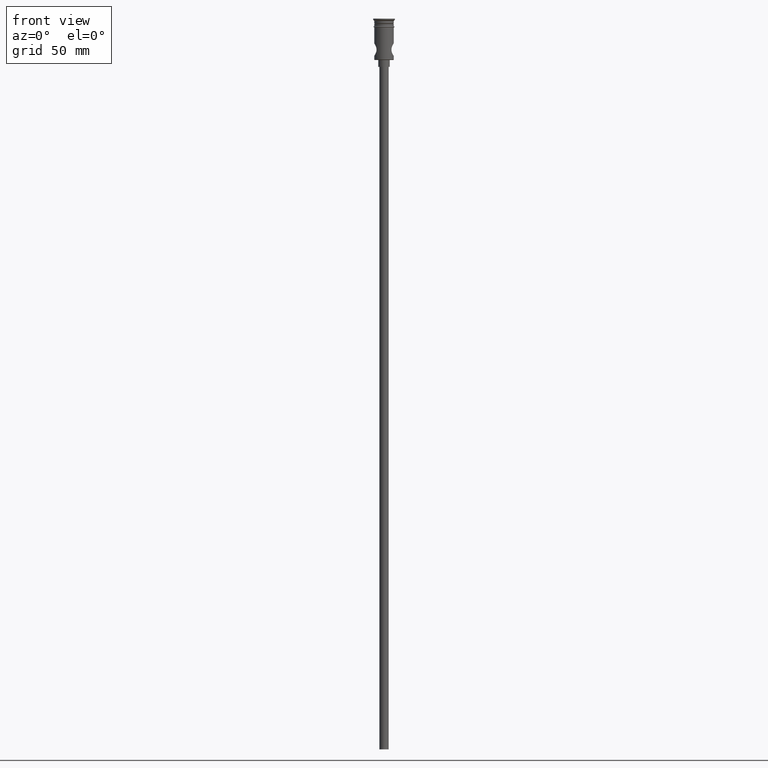
[diagram: clean part render]
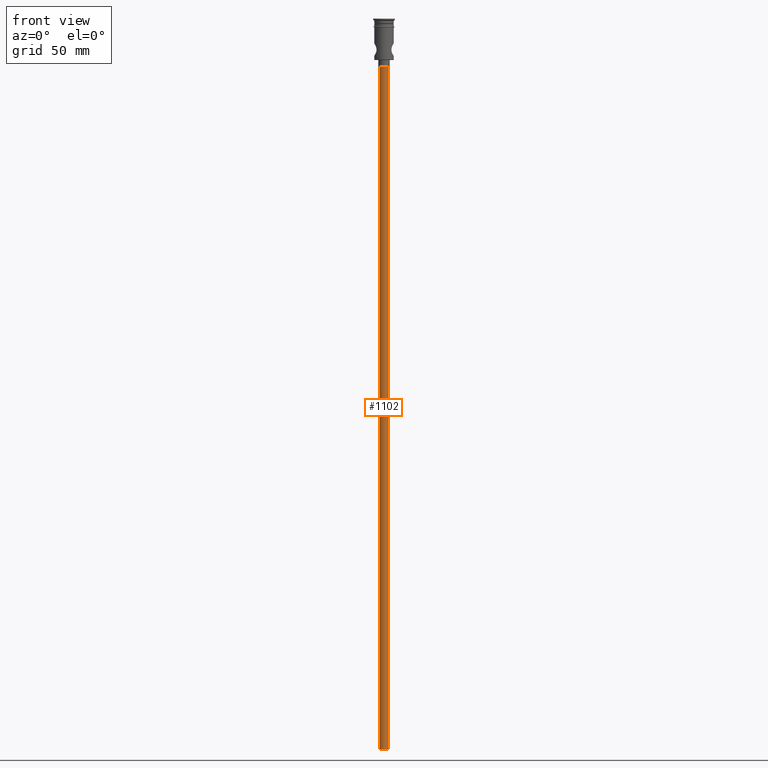
[diagram: same view with one face highlighted and labeled with its STEP entity id]
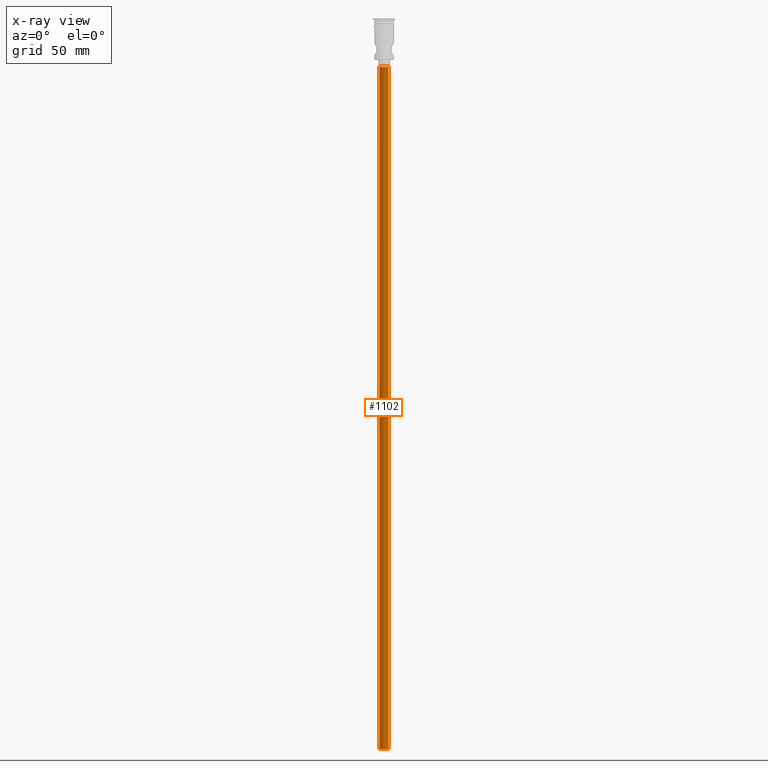
[diagram: x-ray of the same camera — body ghosted, the highlighted face saturated]
A machine part, front view. The second image highlights one B-rep face of the part: STEP entity #1102.
The next image is the same camera in x-ray: the body ghosted, the highlighted face saturated — about 0% of this face is hidden behind the body in this view.
In plain terms, the highlighted cylindrical surface (edge-blend (fillet) strip) has radius 2 mm, axis along (-0, -0, 1).
Its self-contained STEP definition (entity closure, byte-faithful):
#87 = DIRECTION ( 'NONE',  ( 0.000000000000000000, 0.000000000000000000, -1.000000000000000000 ) ) ;
#174 = DIRECTION ( 'NONE',  ( -0.000000000000000000, -0.000000000000000000, 1.000000000000000000 ) ) ;
#198 = CIRCLE ( 'NONE', #1412, 2.000000000000000000 ) ;
#216 = VERTEX_POINT ( 'NONE', #1013 ) ;
#341 = CIRCLE ( 'NONE', #1198, 2.000000000000000000 ) ;
#357 = CYLINDRICAL_SURFACE ( 'NONE', #1152, 2.000000000000000000 ) ;
#423 = LINE ( 'NONE', #623, #712 ) ;
#467 = ORIENTED_EDGE ( 'NONE', *, *, #941, .T. ) ;
#582 = CARTESIAN_POINT ( 'NONE',  ( -2.000000000000000000, 2.449293598294706414E-16, -20.99999999999999645 ) ) ;
#623 = CARTESIAN_POINT ( 'NONE',  ( -2.000000000000000000, 2.449293598294706414E-16, -318.0000000000000000 ) ) ;
#665 = CARTESIAN_POINT ( 'NONE',  ( 0.000000000000000000, 0.000000000000000000, -318.0000000000000000 ) ) ;
#707 = CARTESIAN_POINT ( 'NONE',  ( -2.000000000000000000, 2.449293598294706414E-16, -318.0000000000000000 ) ) ;
#712 = VECTOR ( 'NONE', #752, 1000.000000000000000 ) ;
#720 = VERTEX_POINT ( 'NONE', #582 ) ;
#726 = CARTESIAN_POINT ( 'NONE',  ( 2.000000000000000000, 0.000000000000000000, -318.0000000000000000 ) ) ;
#752 = DIRECTION ( 'NONE',  ( -0.000000000000000000, -0.000000000000000000, 1.000000000000000000 ) ) ;
#766 = CARTESIAN_POINT ( 'NONE',  ( 2.000000000000000000, 0.000000000000000000, -318.0000000000000000 ) ) ;
#775 = DIRECTION ( 'NONE',  ( -0.000000000000000000, -0.000000000000000000, 1.000000000000000000 ) ) ;
#808 = LINE ( 'NONE', #726, #1083 ) ;
#815 = ORIENTED_EDGE ( 'NONE', *, *, #1061, .F. ) ;
#890 = CARTESIAN_POINT ( 'NONE',  ( 0.000000000000000000, 0.000000000000000000, -318.0000000000000000 ) ) ;
#897 = EDGE_CURVE ( 'NONE', #1366, #216, #808, .T. ) ;
#915 = ORIENTED_EDGE ( 'NONE', *, *, #897, .T. ) ;
#941 = EDGE_CURVE ( 'NONE', #216, #720, #198, .T. ) ;
#979 = DIRECTION ( 'NONE',  ( -1.000000000000000000, 0.000000000000000000, 0.000000000000000000 ) ) ;
#1009 = DIRECTION ( 'NONE',  ( 0.000000000000000000, 0.000000000000000000, -1.000000000000000000 ) ) ;
#1013 = CARTESIAN_POINT ( 'NONE',  ( 2.000000000000000000, 0.000000000000000000, -20.99999999999999645 ) ) ;
#1061 = EDGE_CURVE ( 'NONE', #1366, #1156, #341, .T. ) ;
#1083 = VECTOR ( 'NONE', #174, 1000.000000000000000 ) ;
#1086 = CARTESIAN_POINT ( 'NONE',  ( 0.000000000000000000, 0.000000000000000000, -20.99999999999999645 ) ) ;
#1102 = ADVANCED_FACE ( 'NONE', ( #1356 ), #357, .T. ) ;
#1152 = AXIS2_PLACEMENT_3D ( 'NONE', #665, #775, #1438 ) ;
#1156 = VERTEX_POINT ( 'NONE', #707 ) ;
#1189 = EDGE_CURVE ( 'NONE', #1156, #720, #423, .T. ) ;
#1198 = AXIS2_PLACEMENT_3D ( 'NONE', #890, #1009, #1348 ) ;
#1246 = EDGE_LOOP ( 'NONE', ( #1355, #815, #915, #467 ) ) ;
#1348 = DIRECTION ( 'NONE',  ( -1.000000000000000000, 0.000000000000000000, 0.000000000000000000 ) ) ;
#1355 = ORIENTED_EDGE ( 'NONE', *, *, #1189, .F. ) ;
#1356 = FACE_OUTER_BOUND ( 'NONE', #1246, .T. ) ;
#1366 = VERTEX_POINT ( 'NONE', #766 ) ;
#1412 = AXIS2_PLACEMENT_3D ( 'NONE', #1086, #87, #979 ) ;
#1438 = DIRECTION ( 'NONE',  ( 1.000000000000000000, 0.000000000000000000, 0.000000000000000000 ) ) ;